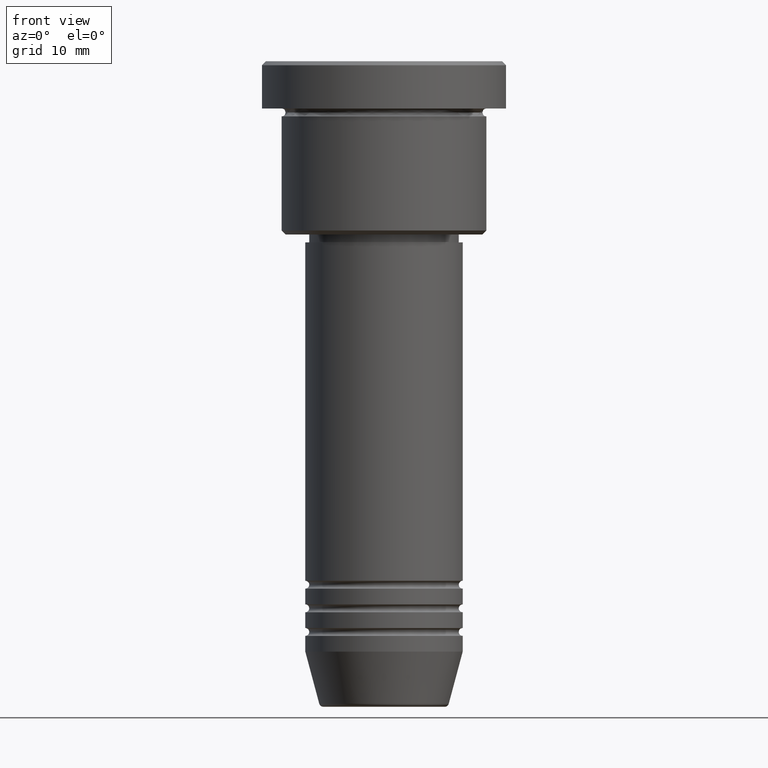
[diagram: clean part render]
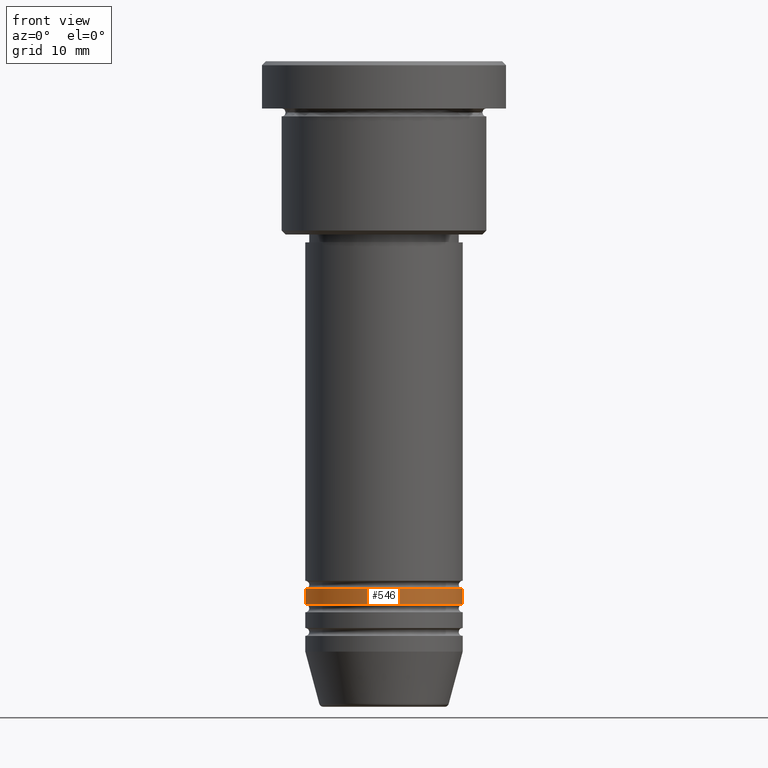
[diagram: same view with one face highlighted and labeled with its STEP entity id]
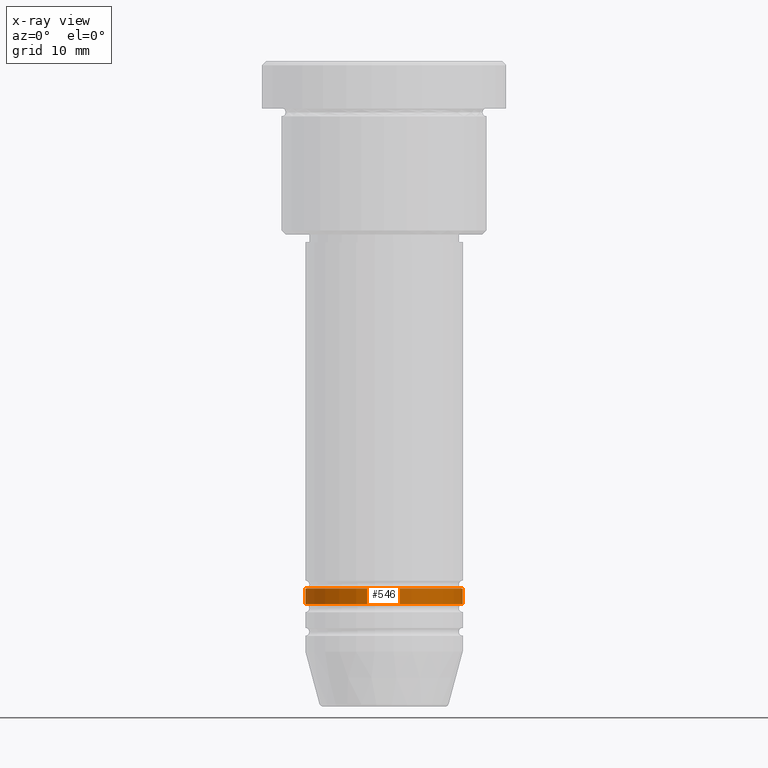
[diagram: x-ray of the same camera — body ghosted, the highlighted face saturated]
A machine part, front view. The second image highlights one B-rep face of the part: STEP entity #546.
The next image is the same camera in x-ray: the body ghosted, the highlighted face saturated — about 0% of this face is hidden behind the body in this view.
In plain terms, the highlighted cylindrical surface (partial cylindrical patch) has radius 10 mm, axis along (-0, -0, 1).
Its self-contained STEP definition (entity closure, byte-faithful):
#100 = LINE ( 'NONE', #273, #845 ) ;
#127 = VERTEX_POINT ( 'NONE', #914 ) ;
#185 = AXIS2_PLACEMENT_3D ( 'NONE', #302, #1030, #743 ) ;
#234 = CARTESIAN_POINT ( 'NONE',  ( 0.000000000000000000, 0.000000000000000000, -66.99999999999995737 ) ) ;
#273 = CARTESIAN_POINT ( 'NONE',  ( 10.00000000000000000, 0.000000000000000000, 0.000000000000000000 ) ) ;
#302 = CARTESIAN_POINT ( 'NONE',  ( 0.000000000000000000, 0.000000000000000000, -68.99999999999995737 ) ) ;
#306 = LINE ( 'NONE', #933, #1038 ) ;
#327 = CARTESIAN_POINT ( 'NONE',  ( 10.00000000000000000, 0.000000000000000000, -66.99999999999995737 ) ) ;
#344 = ORIENTED_EDGE ( 'NONE', *, *, #531, .T. ) ;
#346 = DIRECTION ( 'NONE',  ( -0.000000000000000000, -0.000000000000000000, 1.000000000000000000 ) ) ;
#371 = CIRCLE ( 'NONE', #185, 10.00000000000000000 ) ;
#373 = FACE_OUTER_BOUND ( 'NONE', #589, .T. ) ;
#377 = CARTESIAN_POINT ( 'NONE',  ( 10.00000000000000000, 0.000000000000000000, -68.99999999999995737 ) ) ;
#471 = DIRECTION ( 'NONE',  ( -0.000000000000000000, -0.000000000000000000, 1.000000000000000000 ) ) ;
#489 = ORIENTED_EDGE ( 'NONE', *, *, #701, .F. ) ;
#531 = EDGE_CURVE ( 'NONE', #676, #742, #100, .T. ) ;
#536 = DIRECTION ( 'NONE',  ( -0.000000000000000000, -0.000000000000000000, 1.000000000000000000 ) ) ;
#546 = ADVANCED_FACE ( 'NONE', ( #373 ), #550, .T. ) ;
#548 = CIRCLE ( 'NONE', #869, 10.00000000000000000 ) ;
#550 = CYLINDRICAL_SURFACE ( 'NONE', #1002, 10.00000000000000000 ) ;
#553 = VERTEX_POINT ( 'NONE', #1171 ) ;
#589 = EDGE_LOOP ( 'NONE', ( #489, #757, #344, #1014 ) ) ;
#612 = DIRECTION ( 'NONE',  ( 1.000000000000000000, 0.000000000000000000, 0.000000000000000000 ) ) ;
#632 = CARTESIAN_POINT ( 'NONE',  ( 0.000000000000000000, 0.000000000000000000, 0.000000000000000000 ) ) ;
#637 = DIRECTION ( 'NONE',  ( -0.000000000000000000, -0.000000000000000000, 1.000000000000000000 ) ) ;
#676 = VERTEX_POINT ( 'NONE', #377 ) ;
#684 = EDGE_CURVE ( 'NONE', #127, #676, #371, .T. ) ;
#701 = EDGE_CURVE ( 'NONE', #127, #553, #306, .T. ) ;
#739 = DIRECTION ( 'NONE',  ( 1.000000000000000000, 0.000000000000000000, 0.000000000000000000 ) ) ;
#742 = VERTEX_POINT ( 'NONE', #327 ) ;
#743 = DIRECTION ( 'NONE',  ( 1.000000000000000000, 0.000000000000000000, 0.000000000000000000 ) ) ;
#757 = ORIENTED_EDGE ( 'NONE', *, *, #684, .T. ) ;
#845 = VECTOR ( 'NONE', #637, 1000.000000000000000 ) ;
#869 = AXIS2_PLACEMENT_3D ( 'NONE', #234, #346, #612 ) ;
#914 = CARTESIAN_POINT ( 'NONE',  ( -10.00000000000000000, 1.224646799147353256E-15, -68.99999999999995737 ) ) ;
#933 = CARTESIAN_POINT ( 'NONE',  ( -10.00000000000000000, 1.224646799147353256E-15, 0.000000000000000000 ) ) ;
#990 = EDGE_CURVE ( 'NONE', #553, #742, #548, .T. ) ;
#1002 = AXIS2_PLACEMENT_3D ( 'NONE', #632, #536, #739 ) ;
#1014 = ORIENTED_EDGE ( 'NONE', *, *, #990, .F. ) ;
#1030 = DIRECTION ( 'NONE',  ( -0.000000000000000000, -0.000000000000000000, 1.000000000000000000 ) ) ;
#1038 = VECTOR ( 'NONE', #471, 1000.000000000000000 ) ;
#1171 = CARTESIAN_POINT ( 'NONE',  ( -10.00000000000000000, 1.224646799147353256E-15, -66.99999999999995737 ) ) ;